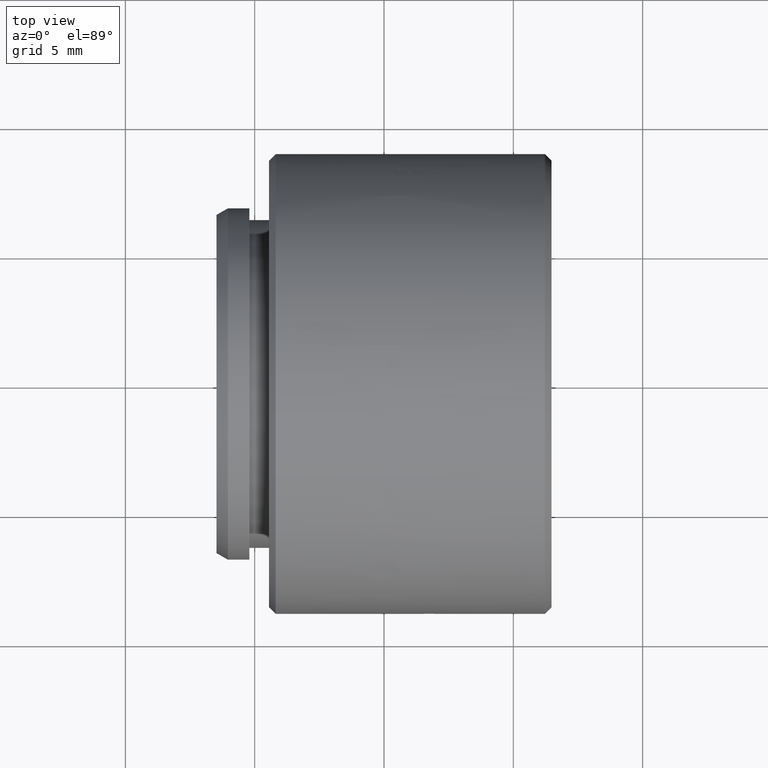
[diagram: clean part render]
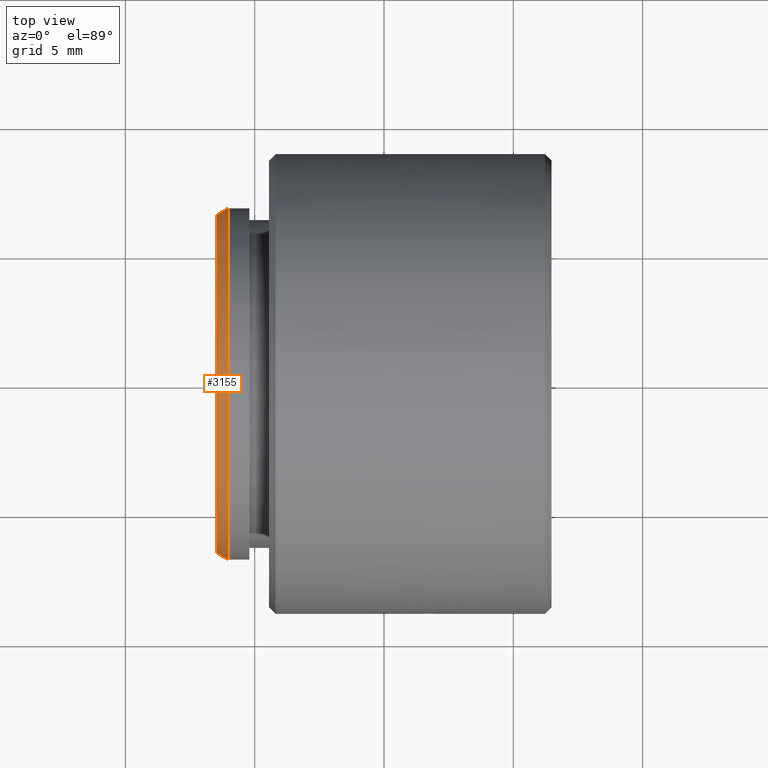
[diagram: same view with one face highlighted and labeled with its STEP entity id]
A machine part, top view. The second image highlights one B-rep face of the part: STEP entity #3155.
In plain terms, the highlighted conical surface has half-angle 30 deg.
Its self-contained STEP definition (entity closure, byte-faithful):
#298 = CONICAL_SURFACE ( 'NONE', #5582, 0.2674999999999999600, 0.5235987755983027000 ) ;
#488 = DIRECTION ( 'NONE',  ( 0.8660254037844368200, -0.5000000000000028900, 6.123233995736805500E-017 ) ) ;
#804 = FACE_OUTER_BOUND ( 'NONE', #8744, .T. ) ;
#1275 = LINE ( 'NONE', #3151, #1528 ) ;
#1528 = VECTOR ( 'NONE', #9322, 39.37007874015748900 ) ;
#1785 = LINE ( 'NONE', #9713, #7424 ) ;
#1865 = CIRCLE ( 'NONE', #6483, 0.2674999999999999600 ) ;
#1941 = EDGE_CURVE ( 'NONE', #4027, #6022, #1865, .T. ) ;
#1996 = EDGE_CURVE ( 'NONE', #5642, #4027, #1275, .T. ) ;
#2167 = EDGE_CURVE ( 'NONE', #7129, #5642, #6948, .T. ) ;
#2681 = CARTESIAN_POINT ( 'NONE',  ( -0.2376794919243109300, -3.612138685426782800E-017, 0.0000000000000000000 ) ) ;
#3151 = CARTESIAN_POINT ( 'NONE',  ( -0.2376794919243110400, 0.2674999999999999000, 0.0000000000000000000 ) ) ;
#3155 = ADVANCED_FACE ( 'NONE', ( #804 ), #298, .T. ) ;
#3802 = DIRECTION ( 'NONE',  ( 1.000000000000000000, 3.361775527071167800E-016, -0.0000000000000000000 ) ) ;
#3816 = CARTESIAN_POINT ( 'NONE',  ( -0.2550000000000000000, -4.194415287079684100E-017, 0.0000000000000000000 ) ) ;
#4027 = VERTEX_POINT ( 'NONE', #4229 ) ;
#4224 = DIRECTION ( 'NONE',  ( -3.829693449062051900E-016, 1.000000000000000000, 0.0000000000000000000 ) ) ;
#4229 = CARTESIAN_POINT ( 'NONE',  ( -0.2376794919243110900, 0.2674999999999999000, 0.0000000000000000000 ) ) ;
#4591 = DIRECTION ( 'NONE',  ( 3.978419408248932300E-016, -1.000000000000000000, 0.0000000000000000000 ) ) ;
#4592 = ORIENTED_EDGE ( 'NONE', *, *, #9232, .T. ) ;
#4646 = ORIENTED_EDGE ( 'NONE', *, *, #2167, .F. ) ;
#5582 = AXIS2_PLACEMENT_3D ( 'NONE', #2681, #9637, #4224 ) ;
#5642 = VERTEX_POINT ( 'NONE', #9045 ) ;
#6022 = VERTEX_POINT ( 'NONE', #7425 ) ;
#6483 = AXIS2_PLACEMENT_3D ( 'NONE', #8420, #3802, #9209 ) ;
#6593 = ORIENTED_EDGE ( 'NONE', *, *, #1941, .F. ) ;
#6948 = CIRCLE ( 'NONE', #9592, 0.2574999999999996700 ) ;
#7129 = VERTEX_POINT ( 'NONE', #7531 ) ;
#7160 = ORIENTED_EDGE ( 'NONE', *, *, #1996, .F. ) ;
#7424 = VECTOR ( 'NONE', #488, 39.37007874015748900 ) ;
#7425 = CARTESIAN_POINT ( 'NONE',  ( -0.2376794919243109000, -0.2674999999999999600, 3.275930187719169400E-017 ) ) ;
#7531 = CARTESIAN_POINT ( 'NONE',  ( -0.2549999999999998900, -0.2574999999999997300, 3.214697847761800000E-017 ) ) ;
#8420 = CARTESIAN_POINT ( 'NONE',  ( -0.2376794919243109800, -3.612138685426785900E-017, 0.0000000000000000000 ) ) ;
#8744 = EDGE_LOOP ( 'NONE', ( #4646, #4592, #6593, #7160 ) ) ;
#9045 = CARTESIAN_POINT ( 'NONE',  ( -0.2550000000000000600, 0.2574999999999996200, 0.0000000000000000000 ) ) ;
#9209 = DIRECTION ( 'NONE',  ( 3.829693449062051900E-016, -1.000000000000000000, 0.0000000000000000000 ) ) ;
#9221 = DIRECTION ( 'NONE',  ( -1.000000000000000000, -3.361775527071165300E-016, 0.0000000000000000000 ) ) ;
#9232 = EDGE_CURVE ( 'NONE', #7129, #6022, #1785, .T. ) ;
#9322 = DIRECTION ( 'NONE',  ( 0.8660254037844364900, 0.5000000000000036600, 0.0000000000000000000 ) ) ;
#9592 = AXIS2_PLACEMENT_3D ( 'NONE', #3816, #9221, #4591 ) ;
#9637 = DIRECTION ( 'NONE',  ( 1.000000000000000000, 3.361775527071167800E-016, -0.0000000000000000000 ) ) ;
#9713 = CARTESIAN_POINT ( 'NONE',  ( -0.2376794919243108200, -0.2674999999999999600, 3.275930187719169400E-017 ) ) ;